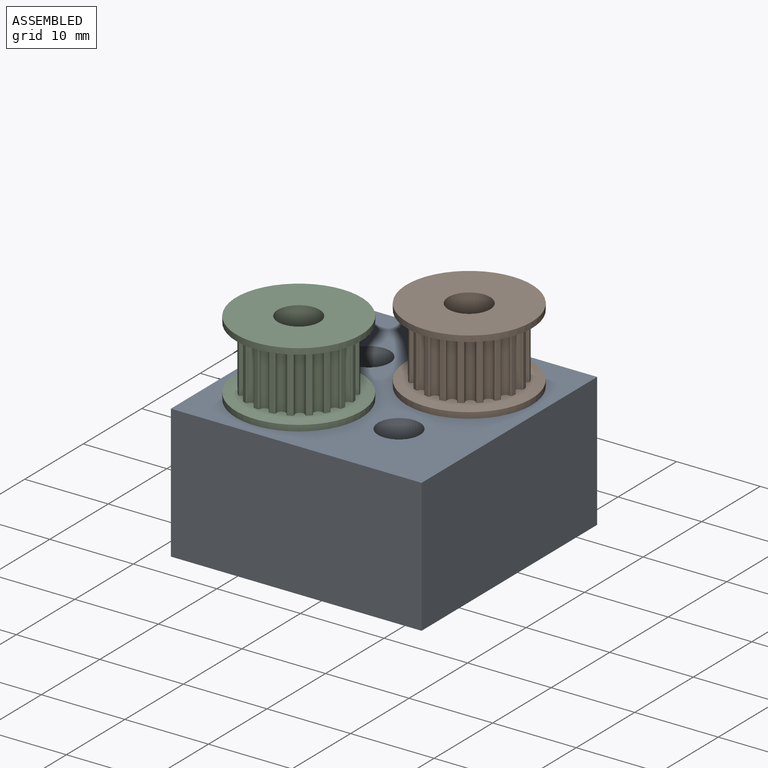
[diagram: assembled view]
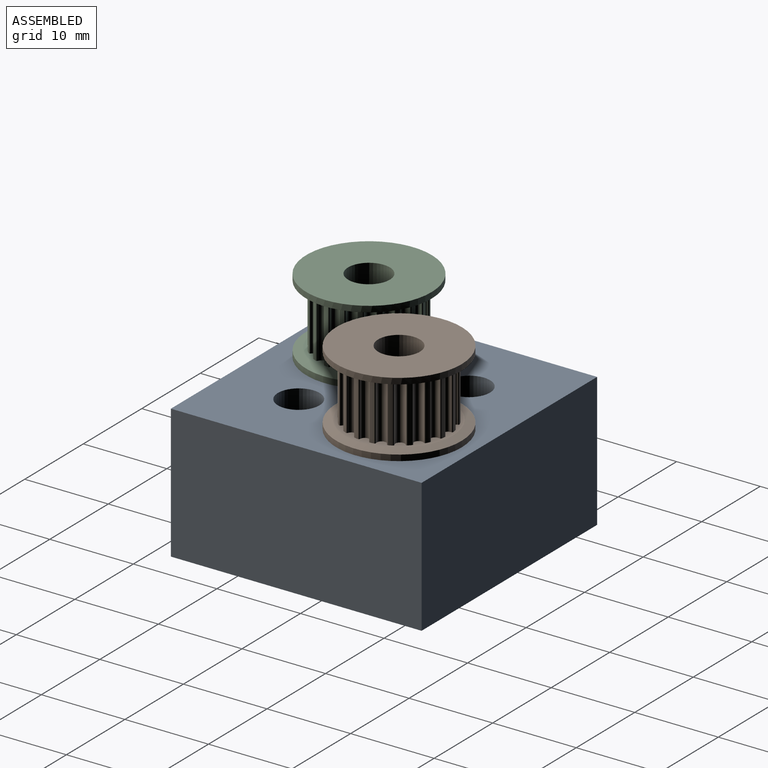
[diagram: assembled view, second angle]
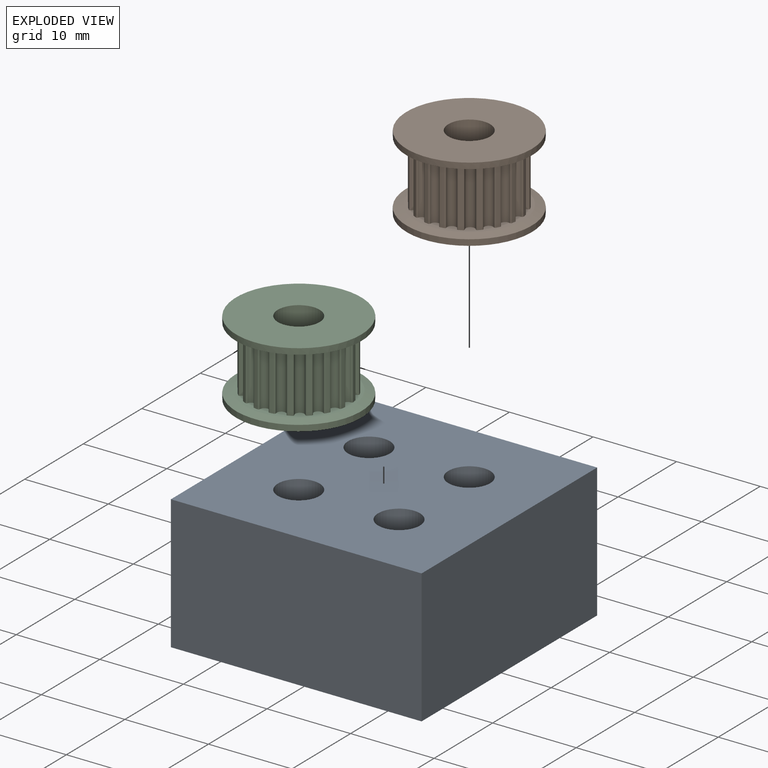
[diagram: exploded view]
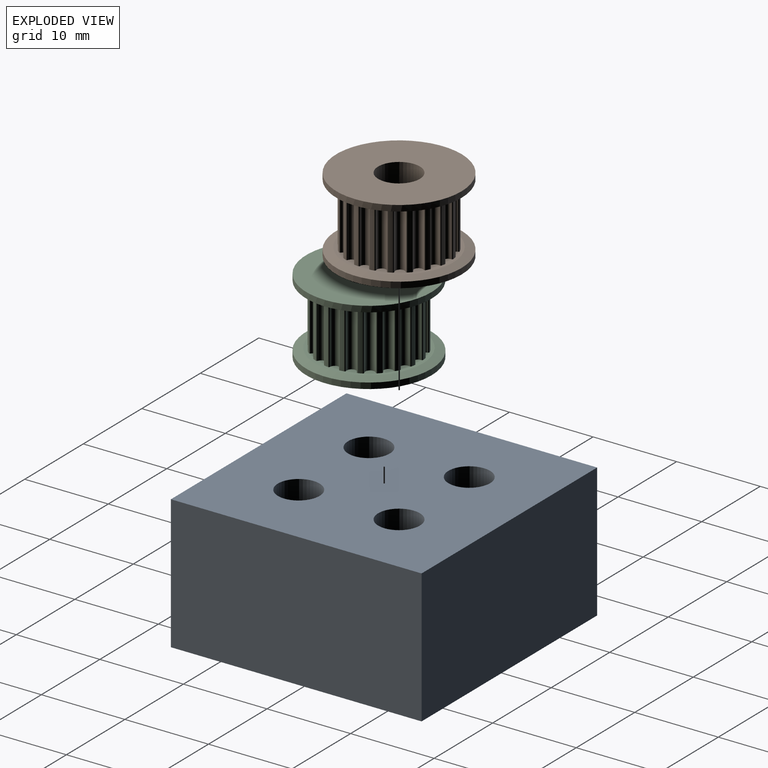
[diagram: exploded view, second angle]
ASSEMBLY  parts=3 mates=2
PART A: 10 faces, bbox 30x30x16 mm
  f0: plane 30x16mm, normal (0,-1,0), area 480mm2, adj f1,f3,f4,f5
  f1: plane 30x16mm, normal (1,0,0), area 480mm2, adj f0,f2,f4,f5
  f2: plane 30x16mm, normal (0,1,0), area 480mm2, adj f1,f3,f4,f5
  f3: plane 30x16mm, normal (-1,0,0), area 480mm2, adj f0,f2,f4,f5
  f4: plane 30x30mm, normal (0,0,1), area 821.5mm2, adj f0,f1,f2,f3,f6,f7,f8,f9
  f5: plane 30x30mm, normal (0,0,-1), area 821.5mm2, adj f0,f1,f2,f3,f6,f7,f8,f9
  f6: cylinder r=2.5mm len=16mm, axis (0,0,-1), area 251.3mm2, adj f4,f5
  f7: cylinder r=2.5mm len=16mm, axis (0,0,-1), area 251.3mm2, adj f4,f5
  f8: cylinder r=2.5mm len=16mm, axis (0,0,-1), area 251.3mm2, adj f4,f5
  f9: cylinder r=2.5mm len=16mm, axis (0,0,-1), area 251.3mm2, adj f4,f5
PART B: 93 faces, bbox 9x15x15 mm
  f0: cylinder r=7.5mm len=15mm, axis (-1,0,0), area 33.3mm2, adj f25,f92
  f1: cylinder r=2.5mm len=8.8mm, axis (1,0,0), area 138.2mm2, adj f91,f92
  f2: cylinder r=6.05mm len=7mm, axis (-1,0,0), area 3.2mm2, adj f23,f24,f83,f90
  f3: cylinder r=6.05mm len=7mm, axis (-1,0,0), area 3.2mm2, adj f23,f24,f82,f84
  f4: cylinder r=6.05mm len=7mm, axis (-1,0,0), area 3.2mm2, adj f23,f24,f81,f85
  f5: cylinder r=6.05mm len=7mm, axis (-1,0,0), area 3.2mm2, adj f23,f24,f80,f88
  f6: cylinder r=6.05mm len=7mm, axis (-1,0,0), area 3.2mm2, adj f23,f24,f79,f87
  f7: cylinder r=6.05mm len=7mm, axis (-1,0,0), area 3.2mm2, adj f23,f24,f78,f86
  f8: cylinder r=6.05mm len=7mm, axis (-1,0,0), area 3.2mm2, adj f23,f24,f76,f77
  f9: cylinder r=6.05mm len=7mm, axis (-1,0,0), area 3.2mm2, adj f23,f24,f74,f75
  f10: cylinder r=6.05mm len=7mm, axis (-1,0,0), area 3.2mm2, adj f23,f24,f72,f73
  f11: cylinder r=6.05mm len=7mm, axis (-1,0,0), area 3.2mm2, adj f23,f24,f70,f71
  f12: cylinder r=6.05mm len=7mm, axis (-1,0,0), area 3.2mm2, adj f23,f24,f68,f69
  f13: cylinder r=6.05mm len=7mm, axis (-1,0,0), area 3.2mm2, adj f23,f24,f66,f67
  f14: cylinder r=6.05mm len=7mm, axis (-1,0,0), area 3.2mm2, adj f23,f24,f64,f65
  f15: cylinder r=6.05mm len=7mm, axis (-1,0,0), area 3.2mm2, adj f23,f24,f62,f63
  f16: cylinder r=6.05mm len=7mm, axis (-1,0,0), area 3.2mm2, adj f23,f24,f60,f61
  f17: cylinder r=6.05mm len=7mm, axis (-1,0,0), area 3.2mm2, adj f23,f24,f51,f89
  f18: cylinder r=6.05mm len=7mm, axis (-1,0,0), area 3.2mm2, adj f23,f24,f58,f59
  f19: cylinder r=6.05mm len=7mm, axis (-1,0,0), area 3.2mm2, adj f23,f24,f56,f57
  f20: cylinder r=6.05mm len=7mm, axis (-1,0,0), area 3.2mm2, adj f23,f24,f54,f55
  f21: cylinder r=6.05mm len=7mm, axis (-1,0,0), area 3.2mm2, adj f23,f24,f52,f53
  f22: cone r=6.45mm half-angle=74.4deg, axis (1,0,0), area 47.8mm2, adj f23,f30
  f23: plane 12.9x12.9mm, normal (-1,0,0), area 29.5mm2, adj f2,f3,f4,f5,f6,f7,f8,f9
  f24: plane 12.9x12.9mm, normal (1,0,0), area 29.5mm2, adj f2,f3,f4,f5,f6,f7,f8,f9
  f25: cone r=7.5mm half-angle=74.4deg, axis (-1,0,0), area 47.8mm2, adj f0,f24
  f26: plane 8.34x8.34mm, normal (1,0,0), area 31.7mm2, adj f27,f91
  f27: cone r=4.25mm half-angle=45.3deg, axis (-1,0,0), area 3mm2, adj f26,f28
  f28: cone r=4.33mm half-angle=44.7deg, axis (1,0,0), area 3mm2, adj f27,f29
  f29: plane 15x15mm, normal (1,0,0), area 117.9mm2, adj f28,f30
  f30: cylinder r=7.5mm len=15mm, axis (-1,0,0), area 33.3mm2, adj f22,f29
  f31: cylinder r=0.55mm len=7mm, axis (-1,0,0), area 12.1mm2, adj f23,f24,f51,f52
  f32: cylinder r=0.55mm len=7mm, axis (-1,0,0), area 12.1mm2, adj f23,f24,f53,f54
  f33: cylinder r=0.55mm len=7mm, axis (-1,0,0), area 12.1mm2, adj f23,f24,f55,f56
  f34: cylinder r=0.55mm len=7mm, axis (-1,0,0), area 12.1mm2, adj f23,f24,f57,f58
  f35: cylinder r=0.55mm len=7mm, axis (-1,0,0), area 12.1mm2, adj f23,f24,f59,f60
  f36: cylinder r=0.55mm len=7mm, axis (-1,0,0), area 12.1mm2, adj f23,f24,f89,f90
  f37: cylinder r=0.55mm len=7mm, axis (-1,0,0), area 12.1mm2, adj f23,f24,f61,f62
  f38: cylinder r=0.55mm len=7mm, axis (-1,0,0), area 12.1mm2, adj f23,f24,f63,f64
  f39: cylinder r=0.55mm len=7mm, axis (-1,0,0), area 12.1mm2, adj f23,f24,f65,f66
  f40: cylinder r=0.55mm len=7mm, axis (-1,0,0), area 12.1mm2, adj f23,f24,f67,f68
  f41: cylinder r=0.55mm len=7mm, axis (-1,0,0), area 12.1mm2, adj f23,f24,f69,f70
  f42: cylinder r=0.55mm len=7mm, axis (-1,0,0), area 12.1mm2, adj f23,f24,f71,f72
  f43: cylinder r=0.55mm len=7mm, axis (-1,0,0), area 12.1mm2, adj f23,f24,f73,f74
  f44: cylinder r=0.55mm len=7mm, axis (-1,0,0), area 12.1mm2, adj f23,f24,f75,f76
  f45: cylinder r=0.55mm len=7mm, axis (-1,0,0), area 12.1mm2, adj f23,f24,f77,f78
  f46: cylinder r=0.55mm len=7mm, axis (-1,0,0), area 12.1mm2, adj f23,f24,f79,f86
  f47: cylinder r=0.55mm len=7mm, axis (-1,0,0), area 12.1mm2, adj f23,f24,f80,f87
  f48: cylinder r=0.55mm len=7mm, axis (-1,0,0), area 12.1mm2, adj f23,f24,f81,f88
  f49: cylinder r=0.55mm len=7mm, axis (-1,0,0), area 12.1mm2, adj f23,f24,f82,f85
  f50: cylinder r=0.55mm len=7mm, axis (-1,0,0), area 12.1mm2, adj f23,f24,f83,f84
  f51: cylinder r=0.15mm len=7mm, axis (1,0,0), area 1.8mm2, adj f17,f23,f24,f31
  f52: cylinder r=0.15mm len=7mm, axis (-1,0,0), area 1.8mm2, adj f21,f23,f24,f31
  f53: cylinder r=0.15mm len=7mm, axis (1,0,0), area 1.8mm2, adj f21,f23,f24,f32
  f54: cylinder r=0.15mm len=7mm, axis (-1,0,0), area 1.8mm2, adj f20,f23,f24,f32
  f55: cylinder r=0.15mm len=7mm, axis (1,0,0), area 1.8mm2, adj f20,f23,f24,f33
  f56: cylinder r=0.15mm len=7mm, axis (-1,0,0), area 1.8mm2, adj f19,f23,f24,f33
  f57: cylinder r=0.15mm len=7mm, axis (1,0,0), area 1.8mm2, adj f19,f23,f24,f34
  f58: cylinder r=0.15mm len=7mm, axis (-1,0,0), area 1.8mm2, adj f18,f23,f24,f34
  f59: cylinder r=0.15mm len=7mm, axis (1,0,0), area 1.8mm2, adj f18,f23,f24,f35
  f60: cylinder r=0.15mm len=7mm, axis (-1,0,0), area 1.8mm2, adj f16,f23,f24,f35
  f61: cylinder r=0.15mm len=7mm, axis (1,0,0), area 1.8mm2, adj f16,f23,f24,f37
  f62: cylinder r=0.15mm len=7mm, axis (-1,0,0), area 1.8mm2, adj f15,f23,f24,f37
  f63: cylinder r=0.15mm len=7mm, axis (1,0,0), area 1.8mm2, adj f15,f23,f24,f38
  f64: cylinder r=0.15mm len=7mm, axis (-1,0,0), area 1.8mm2, adj f14,f23,f24,f38
  f65: cylinder r=0.15mm len=7mm, axis (1,0,0), area 1.8mm2, adj f14,f23,f24,f39
  f66: cylinder r=0.15mm len=7mm, axis (-1,0,0), area 1.8mm2, adj f13,f23,f24,f39
  f67: cylinder r=0.15mm len=7mm, axis (1,0,0), area 1.8mm2, adj f13,f23,f24,f40
  f68: cylinder r=0.15mm len=7mm, axis (-1,0,0), area 1.8mm2, adj f12,f23,f24,f40
  f69: cylinder r=0.15mm len=7mm, axis (1,0,0), area 1.8mm2, adj f12,f23,f24,f41
  f70: cylinder r=0.15mm len=7mm, axis (-1,0,0), area 1.8mm2, adj f11,f23,f24,f41
  f71: cylinder r=0.15mm len=7mm, axis (1,0,0), area 1.8mm2, adj f11,f23,f24,f42
  f72: cylinder r=0.15mm len=7mm, axis (-1,0,0), area 1.8mm2, adj f10,f23,f24,f42
  f73: cylinder r=0.15mm len=7mm, axis (1,0,0), area 1.8mm2, adj f10,f23,f24,f43
  f74: cylinder r=0.15mm len=7mm, axis (-1,0,0), area 1.8mm2, adj f9,f23,f24,f43
  f75: cylinder r=0.15mm len=7mm, axis (1,0,0), area 1.8mm2, adj f9,f23,f24,f44
  f76: cylinder r=0.15mm len=7mm, axis (-1,0,0), area 1.8mm2, adj f8,f23,f24,f44
  f77: cylinder r=0.15mm len=7mm, axis (1,0,0), area 1.8mm2, adj f8,f23,f24,f45
  f78: cylinder r=0.15mm len=7mm, axis (-1,0,0), area 1.8mm2, adj f7,f23,f24,f45
  f79: cylinder r=0.15mm len=7mm, axis (-1,0,0), area 1.8mm2, adj f6,f23,f24,f46
  f80: cylinder r=0.15mm len=7mm, axis (-1,0,0), area 1.8mm2, adj f5,f23,f24,f47
  f81: cylinder r=0.15mm len=7mm, axis (-1,0,0), area 1.8mm2, adj f4,f23,f24,f48
  f82: cylinder r=0.15mm len=7mm, axis (-1,0,0), area 1.8mm2, adj f3,f23,f24,f49
  f83: cylinder r=0.15mm len=7mm, axis (-1,0,0), area 1.8mm2, adj f2,f23,f24,f50
  f84: cylinder r=0.15mm len=7mm, axis (1,0,0), area 1.8mm2, adj f3,f23,f24,f50
  f85: cylinder r=0.15mm len=7mm, axis (1,0,0), area 1.8mm2, adj f4,f23,f24,f49
  f86: cylinder r=0.15mm len=7mm, axis (1,0,0), area 1.8mm2, adj f7,f23,f24,f46
  f87: cylinder r=0.15mm len=7mm, axis (1,0,0), area 1.8mm2, adj f6,f23,f24,f47
  f88: cylinder r=0.15mm len=7mm, axis (1,0,0), area 1.8mm2, adj f5,f23,f24,f48
  f89: cylinder r=0.15mm len=7mm, axis (-1,0,0), area 1.8mm2, adj f17,f23,f24,f36
  f90: cylinder r=0.15mm len=7mm, axis (1,0,0), area 1.8mm2, adj f2,f23,f24,f36
  f91: cone r=2.5mm half-angle=45deg, axis (1,0,0), area 4.6mm2, adj f1,f26
  f92: plane 15x15mm, normal (-1,0,0), area 157.1mm2, adj f0,f1
PART C: same geometry as B
PLACE A at identity
PLACE B rot(axis=(0.71,0,-0.71),180deg) t=(6,6,30)mm
PLACE C rot(axis=(0.71,0,-0.71),180deg) t=(-6,-6,30)mm
MATE fastened C.f0 <-> A.f8  axis (0,0,-1) through (-6,-6,16)mm
MATE fastened B.f0 <-> A.f9  axis (0,0,-1) through (6,6,16)mm
